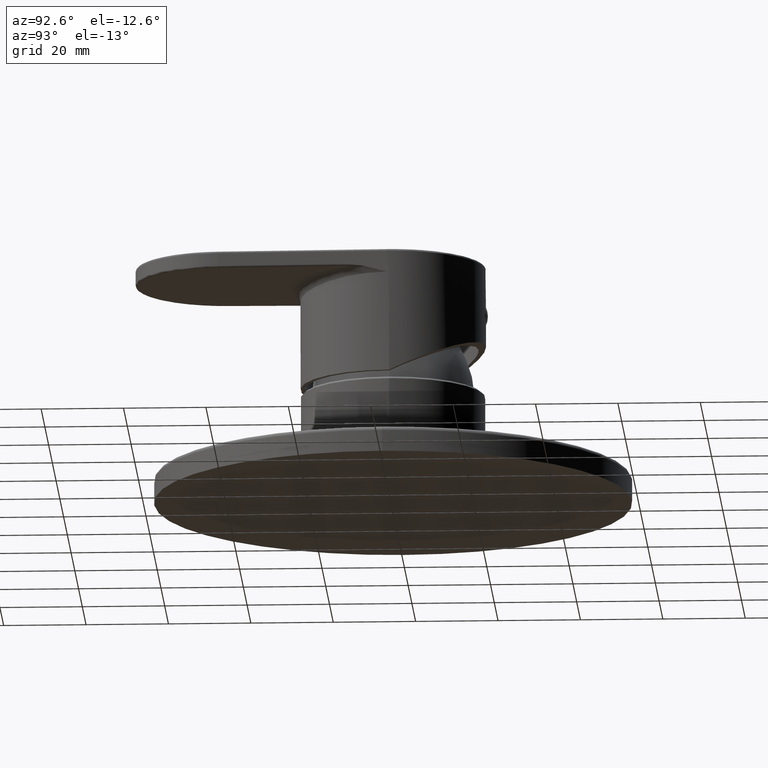
[diagram: clean part render]
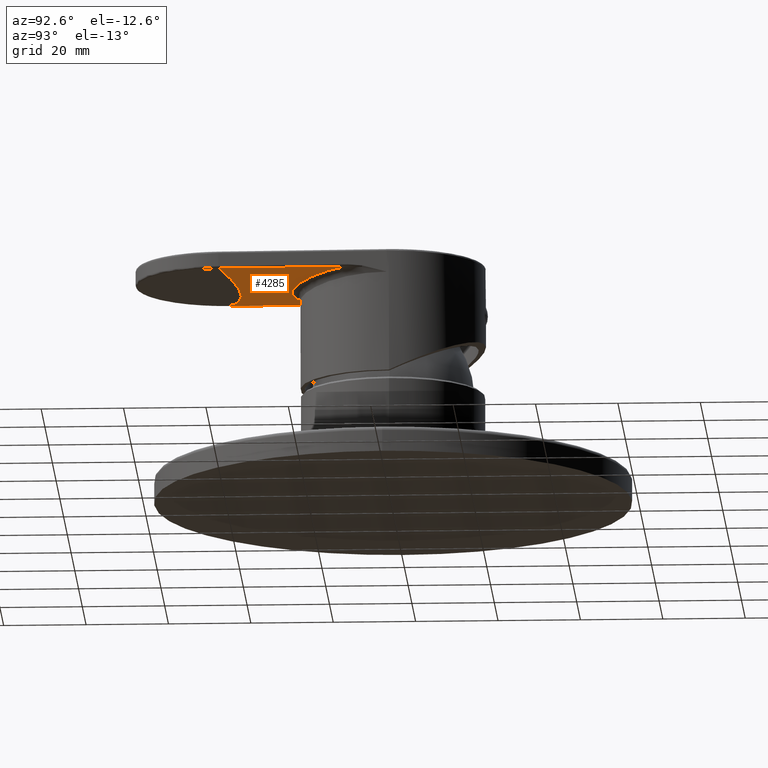
[diagram: same view with one face highlighted and labeled with its STEP entity id]
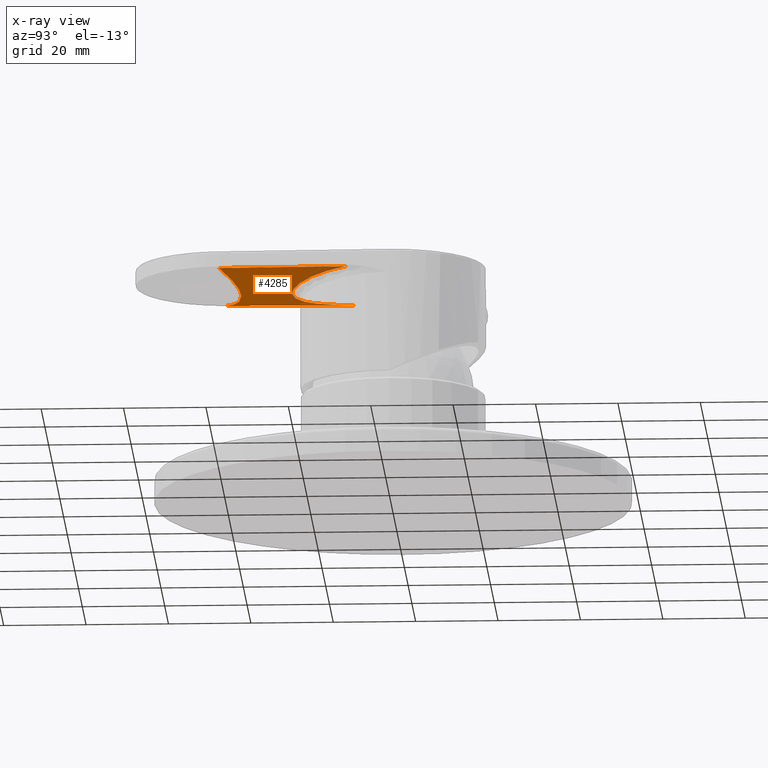
[diagram: x-ray of the same camera — body ghosted, the highlighted face saturated]
A machine part, auxiliary view. The second image highlights one B-rep face of the part: STEP entity #4285.
The next image is the same camera in x-ray: the body ghosted, the highlighted face saturated — about 3% of this face is hidden behind the body in this view.
In plain terms, the highlighted face is a freeform B-spline surface patch.
Its self-contained STEP definition (entity closure, byte-faithful):
#1628=CARTESIAN_POINT('',(2.108667182578E1,-4.135064355468E1,9.402498604629E1));
#1643=CARTESIAN_POINT('',(-2.108667182578E1,-4.135064355468E1,
9.402498604632E1));
#1644=CARTESIAN_POINT('',(-2.116984821330E1,-3.793385741332E1,
9.402511170267E1));
#1645=CARTESIAN_POINT('',(-2.133660399835E1,-3.108382442872E1,
9.402536258089E1));
#1646=CARTESIAN_POINT('',(-2.158792353667E1,-2.076035525667E1,
9.402573605632E1));
#1647=CARTESIAN_POINT('',(-2.175630670631E1,-1.384383841464E1,
9.402598621137E1));
#1648=CARTESIAN_POINT('',(-2.184070388433E1,-1.037718910913E1,
9.402611007543E1));
#1650=CARTESIAN_POINT('',(2.108667182578E1,-4.135064355468E1,9.402498604629E1));
#1651=CARTESIAN_POINT('',(1.405778121719E1,-3.837821921734E1,9.274166201542E1));
#1652=CARTESIAN_POINT('',(-2.045474900569E-12,-3.540579487999E1,
9.145833798457E1));
#1653=CARTESIAN_POINT('',(-1.405778121719E1,-3.837821921734E1,
9.274166201544E1));
#1654=CARTESIAN_POINT('',(-2.108667182578E1,-4.135064355468E1,
9.402498604632E1));
#1656=CARTESIAN_POINT('',(2.184070448521E1,-1.037717789618E1,9.402610896443E1));
#1657=CARTESIAN_POINT('',(2.175630744822E1,-1.384382140956E1,9.402598510060E1));
#1658=CARTESIAN_POINT('',(2.158792397326E1,-2.076033103749E1,9.402573657583E1));
#1659=CARTESIAN_POINT('',(2.133660548759E1,-3.108376505013E1,9.402536243487E1));
#1660=CARTESIAN_POINT('',(2.116984882876E1,-3.793383213131E1,9.402511170358E1));
#1661=CARTESIAN_POINT('',(2.108667182578E1,-4.135064355468E1,9.402498604629E1));
#1663=CARTESIAN_POINT('',(2.184070448521E1,-1.037717789618E1,9.402610896443E1));
#1664=CARTESIAN_POINT('',(2.168028783797E1,-1.072496598948E1,9.399915663803E1));
#1665=CARTESIAN_POINT('',(2.134097821892E1,-1.141819275460E1,9.394250087516E1));
#1666=CARTESIAN_POINT('',(2.077401272955E1,-1.244974339330E1,9.384947128726E1));
#1667=CARTESIAN_POINT('',(2.015309885154E1,-1.346103680220E1,9.374978624494E1));
#1668=CARTESIAN_POINT('',(1.948207266430E1,-1.444391137776E1,9.364481977153E1));
#1669=CARTESIAN_POINT('',(1.876631625802E1,-1.539029171751E1,9.353617588509E1));
#1670=CARTESIAN_POINT('',(1.800727545291E1,-1.629910523378E1,9.342483858836E1));
#1671=CARTESIAN_POINT('',(1.720572514E1,-1.716938843926E1,9.331172367742E1));
#1672=CARTESIAN_POINT('',(1.636383366304E1,-1.799890086186E1,9.319796304406E1));
#1673=CARTESIAN_POINT('',(1.548419394073E1,-1.878523266421E1,9.308473145523E1));
#1674=CARTESIAN_POINT('',(1.456933277796E1,-1.952632011972E1,9.297316859660E1));
#1675=CARTESIAN_POINT('',(1.362186170249E1,-2.022046019823E1,9.286439019744E1));
#1676=CARTESIAN_POINT('',(1.264437476263E1,-2.086603213033E1,9.275946573461E1));
#1677=CARTESIAN_POINT('',(1.163959601542E1,-2.146171269299E1,9.265942567899E1));
#1678=CARTESIAN_POINT('',(1.061032583878E1,-2.200620839378E1,9.256524544821E1));
#1679=CARTESIAN_POINT('',(9.559697428277E0,-2.249843088618E1,9.247784887482E1));
#1680=CARTESIAN_POINT('',(8.489346418095E0,-2.293803037296E1,9.239796637762E1));
#1681=CARTESIAN_POINT('',(7.402813015135E0,-2.332398598687E1,9.232640058462E1));
#1682=CARTESIAN_POINT('',(6.305256870707E0,-2.365507041121E1,9.226393578546E1));
#1683=CARTESIAN_POINT('',(5.211684328484E0,-2.392845117695E1,9.221160295093E1));
#1684=CARTESIAN_POINT('',(4.136191236318E0,-2.414438241841E1,9.216979051507E1));
#1685=CARTESIAN_POINT('',(3.077026602339E0,-2.430718564250E1,9.213798190757E1));
#1686=CARTESIAN_POINT('',(2.033281790703E0,-2.442017374430E1,9.211576735184E1));
#1687=CARTESIAN_POINT('',(1.002935639227E0,-2.448615303193E1,9.210273803504E1));
#1688=CARTESIAN_POINT('',(3.228610647579E-1,-2.450021296595E1,
9.209995846088E1));
#1689=CARTESIAN_POINT('',(-1.534377023683E-2,-2.449999431400E1,
9.210000163032E1));
#1691=CARTESIAN_POINT('',(-1.534377023683E-2,-2.449999431400E1,
9.210000163032E1));
#1692=CARTESIAN_POINT('',(-3.481369724473E-1,-2.449977944084E1,
9.210004406575E1));
#1693=CARTESIAN_POINT('',(-1.017634932195E0,-2.448531443637E1,
9.210290538406E1));
#1694=CARTESIAN_POINT('',(-2.033249893671E0,-2.441995316935E1,
9.211580823856E1));
#1695=CARTESIAN_POINT('',(-3.062171468053E0,-2.430890463138E1,
9.213764619448E1));
#1696=CARTESIAN_POINT('',(-4.105039940273E0,-2.414960226795E1,
9.216877065498E1));
#1697=CARTESIAN_POINT('',(-5.164295966085E0,-2.393885561122E1,
9.220959773702E1));
#1698=CARTESIAN_POINT('',(-6.247949453740E0,-2.367067200946E1,
9.226096469094E1));
#1699=CARTESIAN_POINT('',(-7.343522964594E0,-2.334338822343E1,
9.232276847474E1));
#1700=CARTESIAN_POINT('',(-8.434588978385E0,-2.295898821109E1,
9.239411695337E1));
#1701=CARTESIAN_POINT('',(-9.508927417668E0,-2.252069577351E1,
9.247384469630E1));
#1702=CARTESIAN_POINT('',(-1.056210835631E1,-2.203021111072E1,
9.256103598641E1));
#1703=CARTESIAN_POINT('',(-1.159452528357E1,-2.148694806179E1,
9.265511879918E1));
#1704=CARTESIAN_POINT('',(-1.260282957177E1,-2.089204827033E1,
9.275516550580E1));
#1705=CARTESIAN_POINT('',(-1.358389141070E1,-2.024687944627E1,
9.286016929888E1));
#1706=CARTESIAN_POINT('',(-1.453509762168E1,-1.955271020811E1,
9.296911153110E1));
#1707=CARTESIAN_POINT('',(-1.545378989915E1,-1.881114841701E1,
9.308091564942E1));
#1708=CARTESIAN_POINT('',(-1.633735037138E1,-1.802379194078E1,
9.319446346295E1));
#1709=CARTESIAN_POINT('',(-1.718325424869E1,-1.719269951008E1,
9.330861368418E1));
#1710=CARTESIAN_POINT('',(-1.798891268525E1,-1.632012649465E1,
9.342218983803E1));
#1711=CARTESIAN_POINT('',(-1.875163533812E1,-1.540883963935E1,
9.353398062129E1));
#1712=CARTESIAN_POINT('',(-1.946963637210E1,-1.446124055858E1,
9.364290110504E1));
#1713=CARTESIAN_POINT('',(-2.014258714321E1,-1.347735158032E1,
9.374811658989E1));
#1714=CARTESIAN_POINT('',(-2.076717532844E1,-1.246173639357E1,
9.384835696471E1));
#1715=CARTESIAN_POINT('',(-2.133794559835E1,-1.142425002279E1,
9.394199453339E1));
#1716=CARTESIAN_POINT('',(-2.167933230487E1,-1.072705215171E1,
9.399899798341E1));
#1717=CARTESIAN_POINT('',(-2.184070388433E1,-1.037718910913E1,
9.402611007543E1));
#1960=CARTESIAN_POINT('',(-2.184070388433E1,-1.037718910913E1,
9.402611007543E1));
#3572=CARTESIAN_POINT('',(-1.534335677569E-2,-2.449999431426E1,
9.210000102782E1));
#3574=VERTEX_POINT('',#3572);
#3602=VERTEX_POINT('',#1960);
#3603=VERTEX_POINT('',#1643);
#3613=VERTEX_POINT('',#1628);
#3615=VERTEX_POINT('',#1656);
#4254=CARTESIAN_POINT('',(2.226473395509E1,-9.664509954384E0,9.409888545048E1));
#4255=CARTESIAN_POINT('',(2.200061485307E1,-2.049182718656E1,9.409888545048E1));
#4256=CARTESIAN_POINT('',(2.173649575105E1,-3.131914441873E1,9.409888545048E1));
#4257=CARTESIAN_POINT('',(2.147237664904E1,-4.214646165090E1,9.409888545048E1));
#4258=CARTESIAN_POINT('',(1.484315597006E1,-1.137008693864E1,9.276629515016E1));
#4259=CARTESIAN_POINT('',(1.466707656871E1,-2.056871270070E1,9.276629515016E1));
#4260=CARTESIAN_POINT('',(1.449099716737E1,-2.976733846275E1,9.276629515016E1));
#4261=CARTESIAN_POINT('',(1.431491776602E1,-3.896596422481E1,9.276629515016E1));
#4262=CARTESIAN_POINT('',(-4.625363324493E-4,-1.307571707139E1,
9.143366332421E1));
#4263=CARTESIAN_POINT('',(-4.570494184284E-4,-2.064560061071E1,
9.143366332421E1));
#4264=CARTESIAN_POINT('',(-4.515625044066E-4,-2.821548415003E1,
9.143366332421E1));
#4265=CARTESIAN_POINT('',(-4.460755903857E-4,-3.578536768936E1,
9.143366332421E1));
#4266=CARTESIAN_POINT('',(-1.484408104272E1,-1.136998063835E1,
9.276637820401E1));
#4267=CARTESIAN_POINT('',(-1.466799066755E1,-2.056870790880E1,
9.276637820401E1));
#4268=CARTESIAN_POINT('',(-1.449190029238E1,-2.976743517925E1,
9.276637820401E1));
#4269=CARTESIAN_POINT('',(-1.431580991720E1,-3.896616244969E1,
9.276637820401E1));
#4270=CARTESIAN_POINT('',(-2.226612156409E1,-9.664191053508E0,
9.409913461203E1));
#4271=CARTESIAN_POINT('',(-2.200198600133E1,-2.049181281086E1,
9.409913461203E1));
#4272=CARTESIAN_POINT('',(-2.173785043857E1,-3.131943456821E1,
9.409913461203E1));
#4273=CARTESIAN_POINT('',(-2.147371487581E1,-4.214705632556E1,
9.409913461203E1));
#4274=B_SPLINE_SURFACE_WITH_KNOTS('',3,3,((#4254,#4255,#4256,#4257),(#4258,
#4259,#4260,#4261),(#4262,#4263,#4264,#4265),(#4266,#4267,#4268,#4269),(#4270,
#4271,#4272,#4273)),.UNSPECIFIED.,.F.,.F.,.F.,(4,1,4),(4,4),(1.393381054714E-4,
5.E-1,9.998918148E-1),(4.086978827414E-1,7.037720811645E-1),.UNSPECIFIED.);
#4275=ORIENTED_EDGE('',*,*,#4237,.F.);
#4276=ORIENTED_EDGE('',*,*,#4158,.F.);
#4278=ORIENTED_EDGE('',*,*,#4277,.F.);
#4280=ORIENTED_EDGE('',*,*,#4279,.T.);
#4282=ORIENTED_EDGE('',*,*,#4281,.T.);
#4283=EDGE_LOOP('',(#4275,#4276,#4278,#4280,#4282));
#4284=FACE_OUTER_BOUND('',#4283,.F.);
#4285=ADVANCED_FACE('',(#4284),#4274,.F.);
#1649=B_SPLINE_CURVE_WITH_KNOTS('',3,(#1643,#1644,#1645,#1646,#1647,#1648),
.UNSPECIFIED.,.F.,.F.,(4,1,1,4),(0.E0,3.333333333333E-1,6.666666666667E-1,1.E0),
.UNSPECIFIED.);
#1655=B_SPLINE_CURVE_WITH_KNOTS('',3,(#1650,#1651,#1652,#1653,#1654),
.UNSPECIFIED.,.F.,.F.,(4,1,4),(0.E0,5.E-1,1.E0),.UNSPECIFIED.);
#1662=B_SPLINE_CURVE_WITH_KNOTS('',3,(#1656,#1657,#1658,#1659,#1660,#1661),
.UNSPECIFIED.,.F.,.F.,(4,1,1,4),(0.E0,3.333333333333E-1,6.666666666667E-1,1.E0),
.UNSPECIFIED.);
#1690=B_SPLINE_CURVE_WITH_KNOTS('',3,(#1663,#1664,#1665,#1666,#1667,#1668,#1669,
#1670,#1671,#1672,#1673,#1674,#1675,#1676,#1677,#1678,#1679,#1680,#1681,#1682,
#1683,#1684,#1685,#1686,#1687,#1688,#1689),.UNSPECIFIED.,.F.,.F.,(4,1,1,1,1,1,1,
1,1,1,1,1,1,1,1,1,1,1,1,1,1,1,1,1,4),(0.E0,4.166666666667E-2,8.333333333333E-2,
1.25E-1,1.666666666667E-1,2.083333333333E-1,2.5E-1,2.916666666667E-1,
3.333333333333E-1,3.75E-1,4.166666666667E-1,4.583333333333E-1,5.E-1,
5.416666666667E-1,5.833333333333E-1,6.25E-1,6.666666666667E-1,7.083333333333E-1,
7.5E-1,7.916666666667E-1,8.333333333333E-1,8.75E-1,9.166666666667E-1,
9.583333333333E-1,1.E0),.UNSPECIFIED.);
#1718=B_SPLINE_CURVE_WITH_KNOTS('',3,(#1691,#1692,#1693,#1694,#1695,#1696,#1697,
#1698,#1699,#1700,#1701,#1702,#1703,#1704,#1705,#1706,#1707,#1708,#1709,#1710,
#1711,#1712,#1713,#1714,#1715,#1716,#1717),.UNSPECIFIED.,.F.,.F.,(4,1,1,1,1,1,1,
1,1,1,1,1,1,1,1,1,1,1,1,1,1,1,1,1,4),(0.E0,4.166666666667E-2,8.333333333333E-2,
1.25E-1,1.666666666667E-1,2.083333333333E-1,2.5E-1,2.916666666667E-1,
3.333333333333E-1,3.75E-1,4.166666666667E-1,4.583333333333E-1,5.E-1,
5.416666666667E-1,5.833333333333E-1,6.25E-1,6.666666666667E-1,7.083333333333E-1,
7.5E-1,7.916666666667E-1,8.333333333333E-1,8.75E-1,9.166666666667E-1,
9.583333333333E-1,1.E0),.UNSPECIFIED.);
#4158=EDGE_CURVE('',#3613,#3603,#1655,.T.);
#4237=EDGE_CURVE('',#3603,#3602,#1649,.T.);
#4277=EDGE_CURVE('',#3615,#3613,#1662,.T.);
#4279=EDGE_CURVE('',#3615,#3574,#1690,.T.);
#4281=EDGE_CURVE('',#3574,#3602,#1718,.T.);